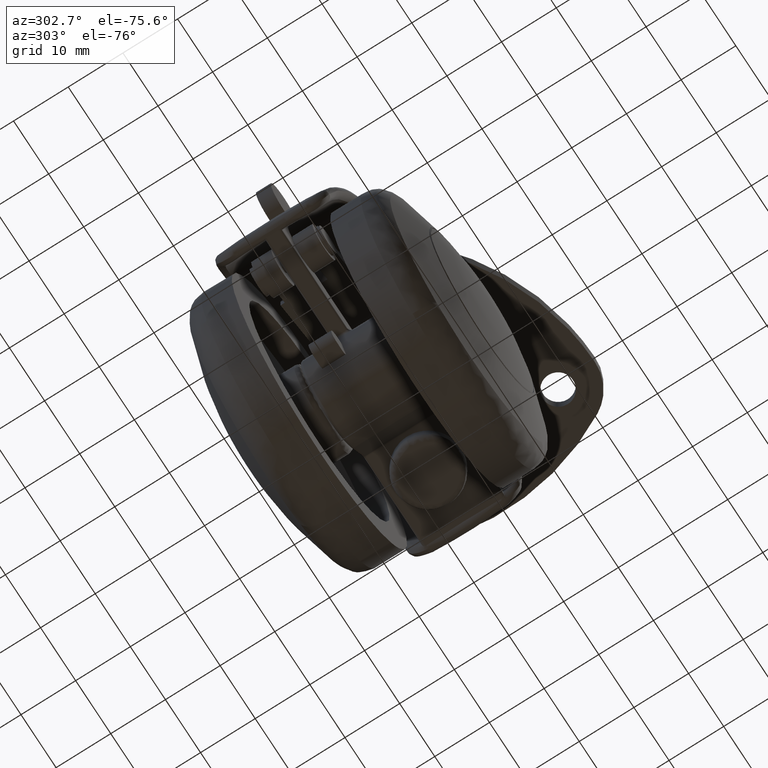
[diagram: clean part render]
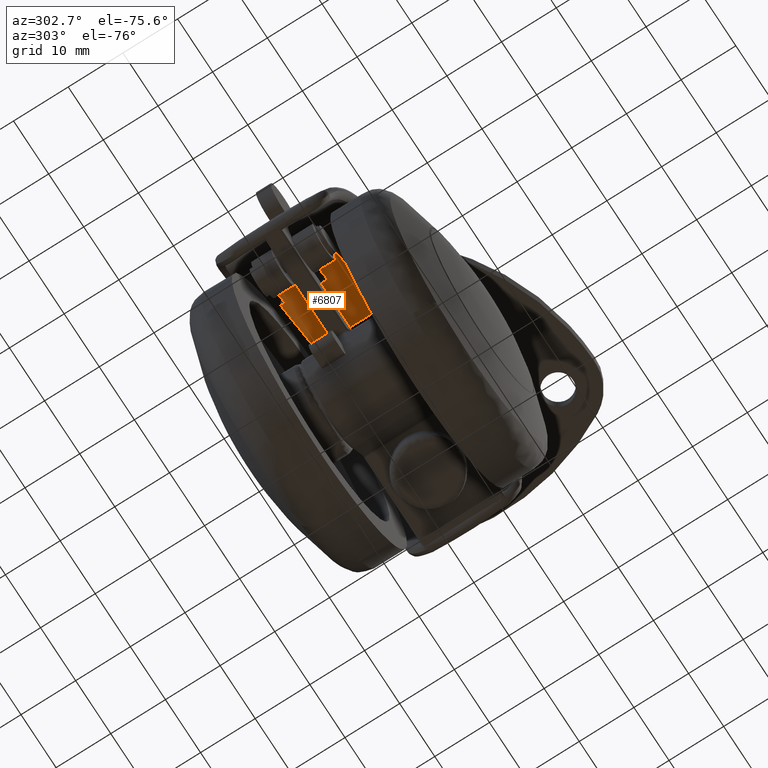
[diagram: same view with one face highlighted and labeled with its STEP entity id]
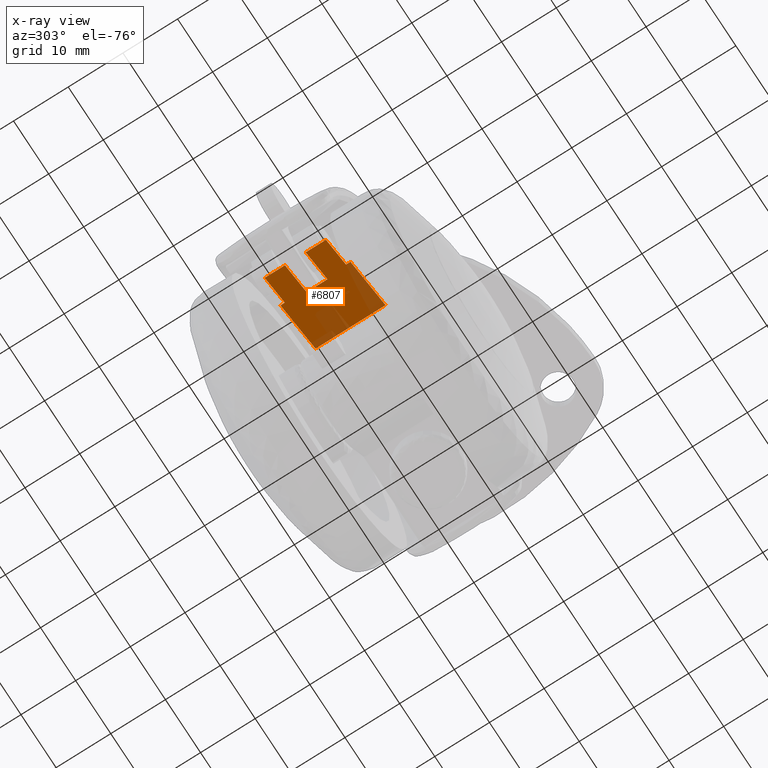
[diagram: x-ray of the same camera — body ghosted, the highlighted face saturated]
A machine part, auxiliary view. The second image highlights one B-rep face of the part: STEP entity #6807.
The next image is the same camera in x-ray: the body ghosted, the highlighted face saturated — about 23% of this face is hidden behind the body in this view.
In plain terms, the highlighted face is a freeform B-spline surface patch.
Its self-contained STEP definition (entity closure, byte-faithful):
#5922=CARTESIAN_POINT('',(-14.679799361954080,1.900000000000000,10.570278341570100));
#5923=VERTEX_POINT('',#5922);
#5924=CARTESIAN_POINT('',(-14.679799361954080,-1.900000000000000,10.570278341570100));
#5925=VERTEX_POINT('',#5924);
#5926=CARTESIAN_POINT('',(-14.679799361954080,1.900000000000000,10.570278341570100));
#5927=CARTESIAN_POINT('',(-14.679799361954080,-1.900000000000000,10.570278341570100));
#5928=QUASI_UNIFORM_CURVE('',1,(#5926,#5927),.UNSPECIFIED.,.F.,.U.);
#5929=EDGE_CURVE('',#5923,#5925,#5928,.T.);
#5974=CARTESIAN_POINT('',(-20.886645920919801,1.900000000000000,6.869426943966571));
#5975=VERTEX_POINT('',#5974);
#5976=CARTESIAN_POINT('',(-20.886645920919801,1.900000000000000,6.869426943966571));
#5977=CARTESIAN_POINT('',(-14.679799361954080,1.900000000000000,10.570278341570100));
#5978=QUASI_UNIFORM_CURVE('',1,(#5976,#5977),.UNSPECIFIED.,.F.,.U.);
#5979=EDGE_CURVE('',#5975,#5923,#5978,.T.);
#6029=CARTESIAN_POINT('',(-20.886645920919801,-1.900000000000000,6.869426943966571));
#6030=VERTEX_POINT('',#6029);
#6031=CARTESIAN_POINT('',(-14.679799361954080,-1.900000000000000,10.570278341570100));
#6032=CARTESIAN_POINT('',(-20.886645920919801,-1.900000000000000,6.869426943966571));
#6033=QUASI_UNIFORM_CURVE('',1,(#6031,#6032),.UNSPECIFIED.,.F.,.U.);
#6034=EDGE_CURVE('',#5925,#6030,#6033,.T.);
#6137=CARTESIAN_POINT('',(-20.886645920919801,5.600000000000000,6.869426943966571));
#6138=VERTEX_POINT('',#6137);
#6158=CARTESIAN_POINT('',(-20.886645920919801,5.600000000000000,6.869426943966571));
#6159=CARTESIAN_POINT('',(-20.886645920919801,1.900000000000000,6.869426943966571));
#6160=QUASI_UNIFORM_CURVE('',1,(#6158,#6159),.UNSPECIFIED.,.F.,.U.);
#6161=EDGE_CURVE('',#6138,#5975,#6160,.T.);
#6171=CARTESIAN_POINT('',(-15.156475000000000,-5.600000000000000,10.286059022708841));
#6172=VERTEX_POINT('',#6171);
#6173=CARTESIAN_POINT('',(-15.156475000000000,-6.400000000000000,10.286059022708800));
#6174=VERTEX_POINT('',#6173);
#6175=CARTESIAN_POINT('',(-15.156475000000000,-5.600000000000000,10.286059022708841));
#6176=CARTESIAN_POINT('',(-15.156475000000000,-6.400000000000000,10.286059022708800));
#6177=QUASI_UNIFORM_CURVE('',1,(#6175,#6176),.UNSPECIFIED.,.F.,.U.);
#6178=EDGE_CURVE('',#6172,#6174,#6177,.T.);
#6209=CARTESIAN_POINT('',(-20.886645920919801,-5.600000000000000,6.869426943966571));
#6210=VERTEX_POINT('',#6209);
#6230=CARTESIAN_POINT('',(-20.886645920919801,-5.600000000000000,6.869426943966571));
#6231=CARTESIAN_POINT('',(-15.156475000000000,-5.600000000000000,10.286059022708841));
#6232=QUASI_UNIFORM_CURVE('',1,(#6230,#6231),.UNSPECIFIED.,.F.,.U.);
#6233=EDGE_CURVE('',#6210,#6172,#6232,.T.);
#6262=CARTESIAN_POINT('',(-15.156475000000000,5.600000000000000,10.286059022708759));
#6263=VERTEX_POINT('',#6262);
#6264=CARTESIAN_POINT('',(-20.886645920919801,5.600000000000000,6.869426943966571));
#6265=CARTESIAN_POINT('',(-15.156475000000000,5.600000000000000,10.286059022708759));
#6266=QUASI_UNIFORM_CURVE('',1,(#6264,#6265),.UNSPECIFIED.,.F.,.U.);
#6267=EDGE_CURVE('',#6138,#6263,#6266,.T.);
#6311=CARTESIAN_POINT('',(-15.156475000000000,6.400000000000000,10.286059022708800));
#6312=VERTEX_POINT('',#6311);
#6318=CARTESIAN_POINT('',(-15.156475000000000,5.600000000000000,10.286059022708759));
#6319=CARTESIAN_POINT('',(-15.156475000000000,6.400000000000000,10.286059022708800));
#6320=QUASI_UNIFORM_CURVE('',1,(#6318,#6319),.UNSPECIFIED.,.F.,.U.);
#6321=EDGE_CURVE('',#6263,#6312,#6320,.T.);
#6339=CARTESIAN_POINT('',(-5.166659475670080,-6.400000000000000,16.242517329481998));
#6340=VERTEX_POINT('',#6339);
#6341=CARTESIAN_POINT('',(-15.156475000000000,-6.400000000000000,10.286059022708800));
#6342=CARTESIAN_POINT('',(-5.166659475670080,-6.400000000000000,16.242517329481998));
#6343=QUASI_UNIFORM_CURVE('',1,(#6341,#6342),.UNSPECIFIED.,.F.,.U.);
#6344=EDGE_CURVE('',#6174,#6340,#6343,.T.);
#6588=CARTESIAN_POINT('',(-5.166659475670080,6.400000000000000,16.242517329481998));
#6589=VERTEX_POINT('',#6588);
#6590=CARTESIAN_POINT('',(-5.166659475670080,-6.400000000000000,16.242517329481998));
#6591=CARTESIAN_POINT('',(-5.166659475670080,6.400000000000000,16.242517329481998));
#6592=QUASI_UNIFORM_CURVE('',1,(#6590,#6591),.UNSPECIFIED.,.F.,.U.);
#6593=EDGE_CURVE('',#6340,#6589,#6592,.T.);
#6725=CARTESIAN_POINT('',(-15.156475000000000,6.400000000000000,10.286059022708800));
#6726=CARTESIAN_POINT('',(-5.166659475670080,6.400000000000000,16.242517329481998));
#6727=QUASI_UNIFORM_CURVE('',1,(#6725,#6726),.UNSPECIFIED.,.F.,.U.);
#6728=EDGE_CURVE('',#6312,#6589,#6727,.T.);
#6784=CARTESIAN_POINT('',(-4.381446035630256,-7.039360095348361,16.710703264059489));
#6785=CARTESIAN_POINT('',(-21.671859642054891,-7.039360095348361,6.401240841785154));
#6786=CARTESIAN_POINT('',(-4.381446035630256,7.039360324230197,16.710703264059489));
#6787=CARTESIAN_POINT('',(-21.671859642054891,7.039360324230197,6.401240841785154));
#6788=B_SPLINE_SURFACE_WITH_KNOTS('',1,1,((#6784,#6786),(#6785,#6787)),.UNSPECIFIED.,.F.,.F.,.U.,(2,2),(2,2),(0.0,20.130658660796989),(0.0,14.078720419578559),.UNSPECIFIED.);
#6789=ORIENTED_EDGE('',*,*,#6034,.F.);
#6790=ORIENTED_EDGE('',*,*,#5929,.F.);
#6791=ORIENTED_EDGE('',*,*,#5979,.F.);
#6792=ORIENTED_EDGE('',*,*,#6161,.F.);
#6793=ORIENTED_EDGE('',*,*,#6267,.T.);
#6794=ORIENTED_EDGE('',*,*,#6321,.T.);
#6795=ORIENTED_EDGE('',*,*,#6728,.T.);
#6796=ORIENTED_EDGE('',*,*,#6593,.F.);
#6797=ORIENTED_EDGE('',*,*,#6344,.F.);
#6798=ORIENTED_EDGE('',*,*,#6178,.F.);
#6799=ORIENTED_EDGE('',*,*,#6233,.F.);
#6800=CARTESIAN_POINT('',(-20.886645920919801,-1.900000000000000,6.869426943966571));
#6801=CARTESIAN_POINT('',(-20.886645920919801,-5.600000000000000,6.869426943966571));
#6802=QUASI_UNIFORM_CURVE('',1,(#6800,#6801),.UNSPECIFIED.,.F.,.U.);
#6803=EDGE_CURVE('',#6030,#6210,#6802,.T.);
#6804=ORIENTED_EDGE('',*,*,#6803,.F.);
#6805=EDGE_LOOP('',(#6789,#6790,#6791,#6792,#6793,#6794,#6795,#6796,#6797,#6798,#6799,#6804));
#6806=FACE_OUTER_BOUND('',#6805,.T.);
#6807=ADVANCED_FACE('',(#6806),#6788,.T.);